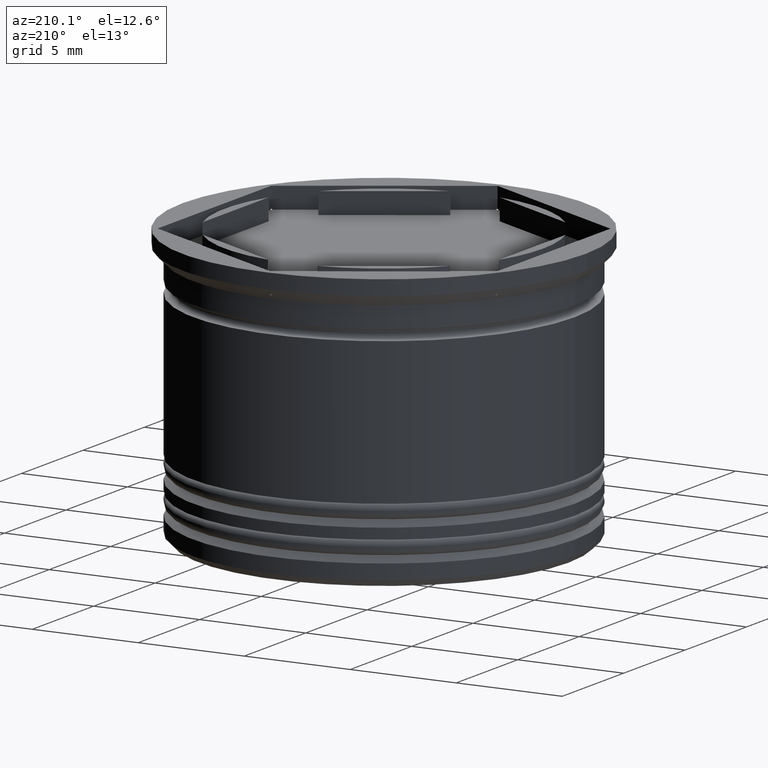
[diagram: clean part render]
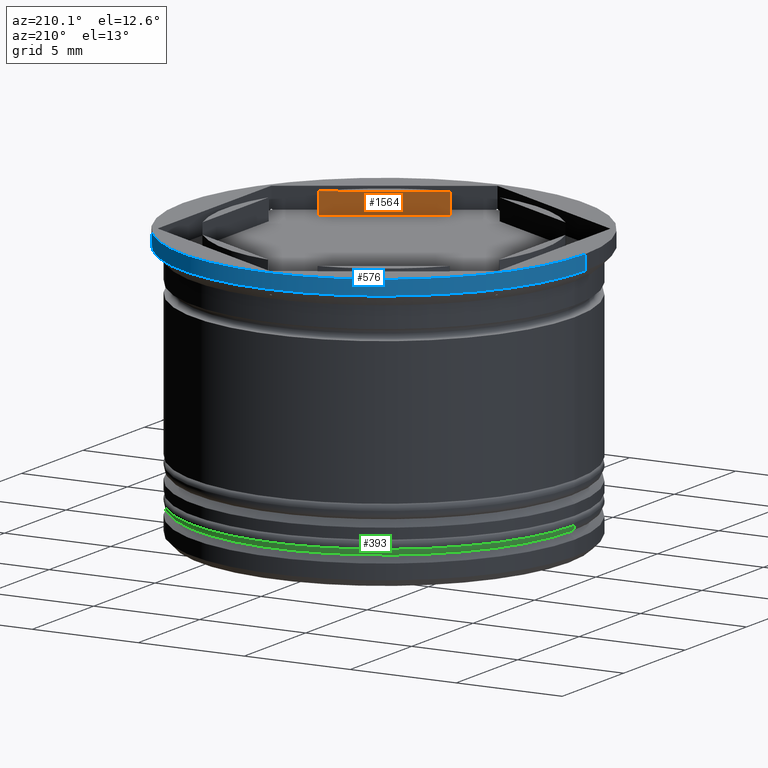
[diagram: same view with three faces highlighted in distinct colors, each labeled with its STEP entity id]
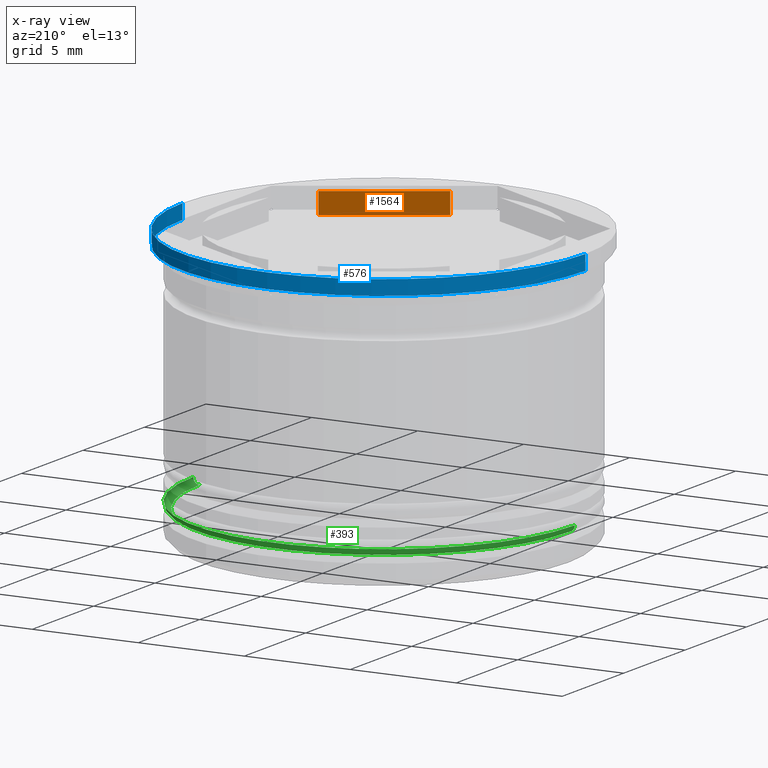
[diagram: x-ray of the same camera — body ghosted, the three highlighted faces saturated]
A machine part, auxiliary view with three faces highlighted in distinct colors.
The next image is the same camera in x-ray (body ghosted, the three faces saturated) — at least one of them is partly hidden behind the body in this view.
Their STEP definitions:

[orange] entity #1564 — the highlighted planar face has unit normal (0.5, -0.866, 0).
#70 = CARTESIAN_POINT ( 'NONE',  ( 3.499999999999997780, -6.062177826491071286, 0.000000000000000000 ) ) ;
#188 = EDGE_CURVE ( 'NONE', #541, #928, #2083, .T. ) ;
#218 = CARTESIAN_POINT ( 'NONE',  ( 1.168155236727792534, -7.408469028274696555, -1.000000000000000888 ) ) ;
#251 = CARTESIAN_POINT ( 'NONE',  ( 1.168155236727792534, -7.408469028274696555, 21.21320343559642652 ) ) ;
#325 = CARTESIAN_POINT ( 'NONE',  ( 5.831844763272203025, -4.715886624707445129, 21.21320343559642652 ) ) ;
#326 = ORIENTED_EDGE ( 'NONE', *, *, #1199, .F. ) ;
#336 = ORIENTED_EDGE ( 'NONE', *, *, #188, .T. ) ;
#338 = CARTESIAN_POINT ( 'NONE',  ( 1.168155236727792312, -7.408469028274696555, 0.000000000000000000 ) ) ;
#367 = ORIENTED_EDGE ( 'NONE', *, *, #2127, .F. ) ;
#541 = VERTEX_POINT ( 'NONE', #338 ) ;
#592 = EDGE_LOOP ( 'NONE', ( #336, #326, #1245, #367 ) ) ;
#697 = VECTOR ( 'NONE', #1021, 1000.000000000000000 ) ;
#743 = CARTESIAN_POINT ( 'NONE',  ( 5.831844763272201249, -4.715886624707444241, 0.000000000000000000 ) ) ;
#759 = VERTEX_POINT ( 'NONE', #218 ) ;
#765 = CARTESIAN_POINT ( 'NONE',  ( 5.831844763272203025, -4.715886624707445129, -1.000000000000000888 ) ) ;
#775 = AXIS2_PLACEMENT_3D ( 'NONE', #1674, #2145, #1685 ) ;
#809 = LINE ( 'NONE', #1296, #1561 ) ;
#899 = LINE ( 'NONE', #251, #2091 ) ;
#928 = VERTEX_POINT ( 'NONE', #743 ) ;
#1021 = DIRECTION ( 'NONE',  ( 0.000000000000000000, 0.000000000000000000, 1.000000000000000000 ) ) ;
#1028 = FACE_OUTER_BOUND ( 'NONE', #592, .T. ) ;
#1145 = DIRECTION ( 'NONE',  ( -0.8660254037844387076, -0.4999999999999997224, 0.000000000000000000 ) ) ;
#1199 = EDGE_CURVE ( 'NONE', #1899, #928, #1809, .T. ) ;
#1245 = ORIENTED_EDGE ( 'NONE', *, *, #1755, .T. ) ;
#1247 = DIRECTION ( 'NONE',  ( 0.8660254037844387076, 0.4999999999999997224, 0.000000000000000000 ) ) ;
#1296 = CARTESIAN_POINT ( 'NONE',  ( -4.336808689942017736E-16, -8.082903768654759347, -1.000000000000000888 ) ) ;
#1319 = PLANE ( 'NONE',  #775 ) ;
#1550 = DIRECTION ( 'NONE',  ( -0.000000000000000000, -0.000000000000000000, -1.000000000000000000 ) ) ;
#1561 = VECTOR ( 'NONE', #1145, 1000.000000000000114 ) ;
#1564 = ADVANCED_FACE ( 'NONE', ( #1028 ), #1319, .F. ) ;
#1674 = CARTESIAN_POINT ( 'NONE',  ( -4.336808689942017736E-16, -8.082903768654759347, -22.38535324312725194 ) ) ;
#1685 = DIRECTION ( 'NONE',  ( 0.8660254037844387076, 0.4999999999999997224, 0.000000000000000000 ) ) ;
#1755 = EDGE_CURVE ( 'NONE', #1899, #759, #809, .T. ) ;
#1809 = LINE ( 'NONE', #325, #697 ) ;
#1870 = VECTOR ( 'NONE', #1247, 1000.000000000000114 ) ;
#1899 = VERTEX_POINT ( 'NONE', #765 ) ;
#2083 = LINE ( 'NONE', #70, #1870 ) ;
#2091 = VECTOR ( 'NONE', #1550, 1000.000000000000000 ) ;
#2127 = EDGE_CURVE ( 'NONE', #541, #759, #899, .T. ) ;
#2145 = DIRECTION ( 'NONE',  ( 0.4999999999999997780, -0.8660254037844388186, 0.000000000000000000 ) ) ;

[blue] entity #576 — the highlighted cylindrical surface (partial cylindrical patch) has radius 9.5 mm, axis along (-0, -0, 1).
#2 = LINE ( 'NONE', #1831, #1091 ) ;
#54 = CIRCLE ( 'NONE', #1348, 9.500000000000000000 ) ;
#104 = AXIS2_PLACEMENT_3D ( 'NONE', #309, #477, #145 ) ;
#145 = DIRECTION ( 'NONE',  ( 1.000000000000000000, 0.000000000000000000, 0.000000000000000000 ) ) ;
#173 = CYLINDRICAL_SURFACE ( 'NONE', #104, 9.500000000000000000 ) ;
#257 = EDGE_CURVE ( 'NONE', #2168, #441, #1627, .T. ) ;
#309 = CARTESIAN_POINT ( 'NONE',  ( 0.000000000000000000, 0.000000000000000000, 0.000000000000000000 ) ) ;
#441 = VERTEX_POINT ( 'NONE', #1267 ) ;
#470 = CARTESIAN_POINT ( 'NONE',  ( 9.500000000000000000, 0.000000000000000000, -0.6999999999999952927 ) ) ;
#477 = DIRECTION ( 'NONE',  ( -0.000000000000000000, -0.000000000000000000, 1.000000000000000000 ) ) ;
#576 = ADVANCED_FACE ( 'NONE', ( #1971 ), #173, .T. ) ;
#619 = EDGE_CURVE ( 'NONE', #2168, #2096, #1224, .T. ) ;
#691 = EDGE_LOOP ( 'NONE', ( #1682, #2169, #698, #791 ) ) ;
#698 = ORIENTED_EDGE ( 'NONE', *, *, #887, .F. ) ;
#746 = DIRECTION ( 'NONE',  ( -0.000000000000000000, -0.000000000000000000, 1.000000000000000000 ) ) ;
#770 = CARTESIAN_POINT ( 'NONE',  ( 0.000000000000000000, 0.000000000000000000, -0.6999999999999952927 ) ) ;
#791 = ORIENTED_EDGE ( 'NONE', *, *, #619, .F. ) ;
#887 = EDGE_CURVE ( 'NONE', #2096, #1529, #54, .T. ) ;
#900 = CARTESIAN_POINT ( 'NONE',  ( 9.500000000000000000, 0.000000000000000000, 0.000000000000000000 ) ) ;
#986 = CARTESIAN_POINT ( 'NONE',  ( 0.000000000000000000, 0.000000000000000000, 0.000000000000000000 ) ) ;
#1010 = DIRECTION ( 'NONE',  ( 1.000000000000000000, 0.000000000000000000, 0.000000000000000000 ) ) ;
#1022 = AXIS2_PLACEMENT_3D ( 'NONE', #770, #1422, #2048 ) ;
#1030 = DIRECTION ( 'NONE',  ( -0.000000000000000000, -0.000000000000000000, 1.000000000000000000 ) ) ;
#1064 = CARTESIAN_POINT ( 'NONE',  ( 9.500000000000000000, 0.000000000000000000, 0.000000000000000000 ) ) ;
#1091 = VECTOR ( 'NONE', #1030, 1000.000000000000000 ) ;
#1224 = LINE ( 'NONE', #900, #1777 ) ;
#1267 = CARTESIAN_POINT ( 'NONE',  ( -9.500000000000000000, 1.163414459189985485E-15, -0.6999999999999952927 ) ) ;
#1348 = AXIS2_PLACEMENT_3D ( 'NONE', #986, #1466, #1010 ) ;
#1358 = CARTESIAN_POINT ( 'NONE',  ( -9.500000000000000000, 1.163414459189985485E-15, 0.000000000000000000 ) ) ;
#1422 = DIRECTION ( 'NONE',  ( -0.000000000000000000, -0.000000000000000000, 1.000000000000000000 ) ) ;
#1466 = DIRECTION ( 'NONE',  ( -0.000000000000000000, -0.000000000000000000, 1.000000000000000000 ) ) ;
#1529 = VERTEX_POINT ( 'NONE', #1358 ) ;
#1627 = CIRCLE ( 'NONE', #1022, 9.500000000000000000 ) ;
#1682 = ORIENTED_EDGE ( 'NONE', *, *, #257, .T. ) ;
#1777 = VECTOR ( 'NONE', #746, 1000.000000000000000 ) ;
#1831 = CARTESIAN_POINT ( 'NONE',  ( -9.500000000000000000, 1.163414459189985485E-15, 0.000000000000000000 ) ) ;
#1971 = FACE_OUTER_BOUND ( 'NONE', #691, .T. ) ;
#2017 = EDGE_CURVE ( 'NONE', #441, #1529, #2, .T. ) ;
#2048 = DIRECTION ( 'NONE',  ( -1.000000000000000000, 0.000000000000000000, 0.000000000000000000 ) ) ;
#2096 = VERTEX_POINT ( 'NONE', #1064 ) ;
#2168 = VERTEX_POINT ( 'NONE', #470 ) ;
#2169 = ORIENTED_EDGE ( 'NONE', *, *, #2017, .T. ) ;

[green] entity #393 — the highlighted toroidal blend (fillet) surface has major radius 8.7 mm and minor (blend) radius 0.3 mm.
#45 = VERTEX_POINT ( 'NONE', #616 ) ;
#61 = DIRECTION ( 'NONE',  ( 1.000000000000000000, 0.000000000000000000, 0.000000000000000000 ) ) ;
#84 = ORIENTED_EDGE ( 'NONE', *, *, #1463, .F. ) ;
#121 = CIRCLE ( 'NONE', #1352, 0.2999999999999999334 ) ;
#147 = ORIENTED_EDGE ( 'NONE', *, *, #1128, .T. ) ;
#157 = CIRCLE ( 'NONE', #375, 0.2999999999999999334 ) ;
#375 = AXIS2_PLACEMENT_3D ( 'NONE', #1799, #2010, #1531 ) ;
#393 = ADVANCED_FACE ( 'NONE', ( #1711 ), #1290, .T. ) ;
#447 = CARTESIAN_POINT ( 'NONE',  ( 8.700000000000001066, 0.000000000000000000, -11.40000000000000391 ) ) ;
#501 = DIRECTION ( 'NONE',  ( 1.000000000000000000, 0.000000000000000000, 0.000000000000000000 ) ) ;
#586 = CARTESIAN_POINT ( 'NONE',  ( 0.000000000000000000, 0.000000000000000000, -11.70000000000000462 ) ) ;
#590 = CIRCLE ( 'NONE', #1618, 9.000000000000001776 ) ;
#616 = CARTESIAN_POINT ( 'NONE',  ( 8.700000000000001066, 0.000000000000000000, -11.70000000000000462 ) ) ;
#620 = EDGE_CURVE ( 'NONE', #1360, #45, #930, .T. ) ;
#627 = DIRECTION ( 'NONE',  ( 0.000000000000000000, -1.000000000000000000, 0.000000000000000000 ) ) ;
#707 = AXIS2_PLACEMENT_3D ( 'NONE', #1234, #1881, #61 ) ;
#810 = DIRECTION ( 'NONE',  ( 0.000000000000000000, 0.000000000000000000, -1.000000000000000000 ) ) ;
#828 = DIRECTION ( 'NONE',  ( 0.000000000000000000, 0.000000000000000000, 1.000000000000000000 ) ) ;
#930 = CIRCLE ( 'NONE', #2034, 8.700000000000001066 ) ;
#1100 = EDGE_CURVE ( 'NONE', #1314, #1244, #590, .T. ) ;
#1128 = EDGE_CURVE ( 'NONE', #1360, #1244, #157, .T. ) ;
#1129 = CARTESIAN_POINT ( 'NONE',  ( -8.700000000000001066, 1.083812417245407678E-15, -11.70000000000000462 ) ) ;
#1234 = CARTESIAN_POINT ( 'NONE',  ( 0.000000000000000000, 0.000000000000000000, -11.40000000000000391 ) ) ;
#1244 = VERTEX_POINT ( 'NONE', #2093 ) ;
#1290 = TOROIDAL_SURFACE ( 'NONE', #707, 8.700000000000001066, 0.2999999999999999889 ) ;
#1314 = VERTEX_POINT ( 'NONE', #1410 ) ;
#1345 = CARTESIAN_POINT ( 'NONE',  ( 0.000000000000000000, 0.000000000000000000, -11.40000000000000391 ) ) ;
#1352 = AXIS2_PLACEMENT_3D ( 'NONE', #447, #627, #810 ) ;
#1360 = VERTEX_POINT ( 'NONE', #1129 ) ;
#1381 = DIRECTION ( 'NONE',  ( 1.000000000000000000, 0.000000000000000000, 0.000000000000000000 ) ) ;
#1410 = CARTESIAN_POINT ( 'NONE',  ( 9.000000000000001776, 0.000000000000000000, -11.40000000000000391 ) ) ;
#1463 = EDGE_CURVE ( 'NONE', #45, #1314, #121, .T. ) ;
#1465 = ORIENTED_EDGE ( 'NONE', *, *, #1100, .F. ) ;
#1531 = DIRECTION ( 'NONE',  ( -1.000000000000000000, 1.224646799147353207E-16, 0.000000000000000000 ) ) ;
#1618 = AXIS2_PLACEMENT_3D ( 'NONE', #1345, #828, #501 ) ;
#1706 = ORIENTED_EDGE ( 'NONE', *, *, #620, .F. ) ;
#1711 = FACE_OUTER_BOUND ( 'NONE', #1782, .T. ) ;
#1782 = EDGE_LOOP ( 'NONE', ( #1706, #147, #1465, #84 ) ) ;
#1799 = CARTESIAN_POINT ( 'NONE',  ( -8.700000000000001066, 1.065442715258197446E-15, -11.40000000000000391 ) ) ;
#1881 = DIRECTION ( 'NONE',  ( 0.000000000000000000, 0.000000000000000000, 1.000000000000000000 ) ) ;
#2010 = DIRECTION ( 'NONE',  ( 1.224646799147353207E-16, 1.000000000000000000, -0.000000000000000000 ) ) ;
#2034 = AXIS2_PLACEMENT_3D ( 'NONE', #586, #2037, #1381 ) ;
#2037 = DIRECTION ( 'NONE',  ( -0.000000000000000000, -0.000000000000000000, -1.000000000000000000 ) ) ;
#2093 = CARTESIAN_POINT ( 'NONE',  ( -9.000000000000001776, 1.102182119232617911E-15, -11.40000000000000391 ) ) ;